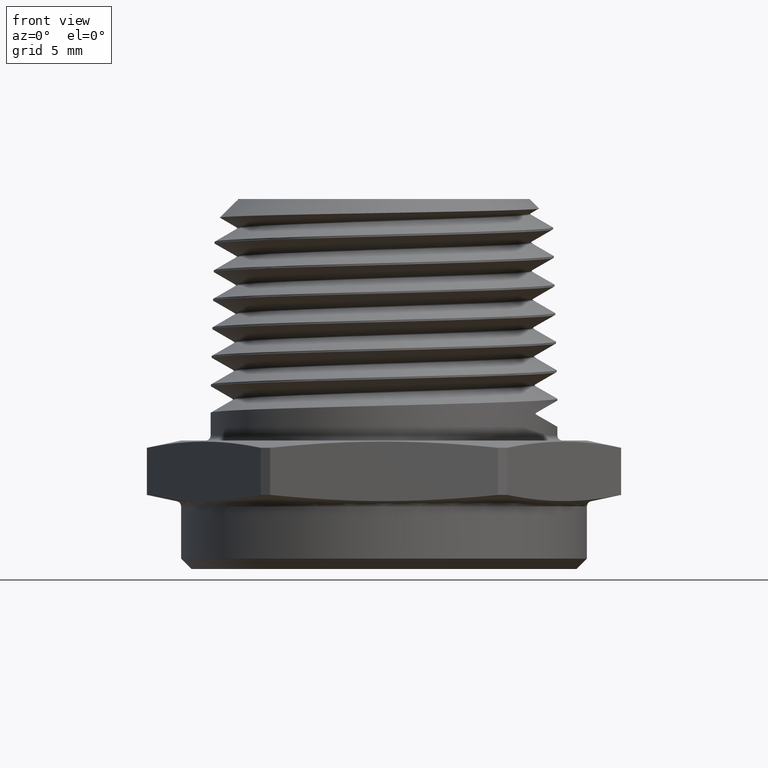
[diagram: clean part render]
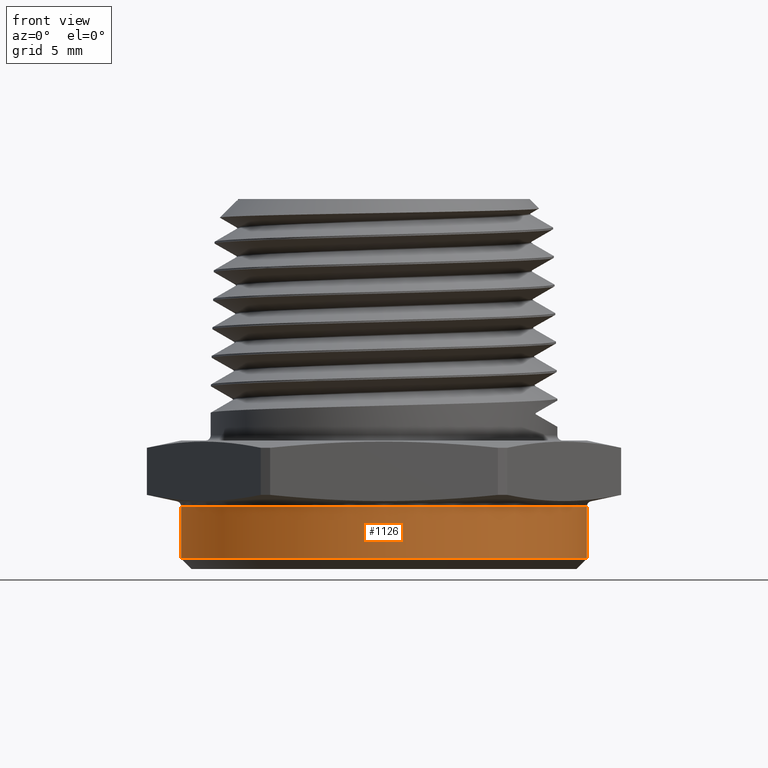
[diagram: same view with one face highlighted and labeled with its STEP entity id]
A machine part, front view. The second image highlights one B-rep face of the part: STEP entity #1126.
In plain terms, the highlighted cylindrical surface (partial cylindrical patch) has radius 10.033 mm, axis along (0, 0, 1).
Its self-contained STEP definition (entity closure, byte-faithful):
#94 = FACE_OUTER_BOUND ( 'NONE', #1687, .T. ) ;
#99 = CYLINDRICAL_SURFACE ( 'NONE', #2817, 0.3950000000000000200 ) ;
#355 = DIRECTION ( 'NONE',  ( -0.0000000000000000000, -0.0000000000000000000, 1.000000000000000000 ) ) ;
#374 = CARTESIAN_POINT ( 'NONE',  ( 0.0000000000000000000, 0.0000000000000000000, -0.008097840331950215800 ) ) ;
#375 = DIRECTION ( 'NONE',  ( -6.123233995736756200E-017, -0.0000000000000000000, -1.000000000000000000 ) ) ;
#376 = DIRECTION ( 'NONE',  ( -1.000000000000000000, 0.0000000000000000000, 6.213657422298067100E-017 ) ) ;
#451 = AXIS2_PLACEMENT_3D ( 'NONE', #5073, #5074, #5075 ) ;
#465 = AXIS2_PLACEMENT_3D ( 'NONE', #374, #375, #376 ) ;
#1126 = ADVANCED_FACE ( 'NONE', ( #94 ), #99, .T. ) ;
#1515 = LINE ( 'NONE', #2206, #1518 ) ;
#1518 = VECTOR ( 'NONE', #2201, 39.37007874015748100 ) ;
#1613 = CIRCLE ( 'NONE', #451, 0.3950000000000000200 ) ;
#1629 = LINE ( 'NONE', #5343, #1634 ) ;
#1634 = VECTOR ( 'NONE', #355, 39.37007874015748100 ) ;
#1639 = CIRCLE ( 'NONE', #465, 0.3950000000000000200 ) ;
#1687 = EDGE_LOOP ( 'NONE', ( #3448, #3447, #3449, #3443 ) ) ;
#2201 = DIRECTION ( 'NONE',  ( -0.0000000000000000000, -0.0000000000000000000, 1.000000000000000000 ) ) ;
#2206 = CARTESIAN_POINT ( 'NONE',  ( 0.3950000000000000200, 0.0000000000000000000, -0.1300000000000000000 ) ) ;
#2331 = EDGE_CURVE ( 'NONE', #3401, #3398, #1515, .T. ) ;
#2817 = AXIS2_PLACEMENT_3D ( 'NONE', #3166, #3162, #3163 ) ;
#3162 = DIRECTION ( 'NONE',  ( -0.0000000000000000000, -0.0000000000000000000, 1.000000000000000000 ) ) ;
#3163 = DIRECTION ( 'NONE',  ( 1.000000000000000000, 0.0000000000000000000, 0.0000000000000000000 ) ) ;
#3166 = CARTESIAN_POINT ( 'NONE',  ( 0.0000000000000000000, 0.0000000000000000000, -0.1300000000000000000 ) ) ;
#3395 = VERTEX_POINT ( 'NONE', #3519 ) ;
#3398 = VERTEX_POINT ( 'NONE', #3522 ) ;
#3400 = VERTEX_POINT ( 'NONE', #3524 ) ;
#3401 = VERTEX_POINT ( 'NONE', #3525 ) ;
#3443 = ORIENTED_EDGE ( 'NONE', *, *, #5568, .T. ) ;
#3447 = ORIENTED_EDGE ( 'NONE', *, *, #5546, .T. ) ;
#3448 = ORIENTED_EDGE ( 'NONE', *, *, #5561, .F. ) ;
#3449 = ORIENTED_EDGE ( 'NONE', *, *, #2331, .T. ) ;
#3519 = CARTESIAN_POINT ( 'NONE',  ( -0.3950000000000000200, 4.837354856632044300E-017, -0.008097840331950191500 ) ) ;
#3522 = CARTESIAN_POINT ( 'NONE',  ( 0.3950000000000000200, 0.0000000000000000000, -0.008097840331950240100 ) ) ;
#3524 = CARTESIAN_POINT ( 'NONE',  ( -0.3950000000000000200, 4.837354856632044300E-017, -0.1100000000000008200 ) ) ;
#3525 = CARTESIAN_POINT ( 'NONE',  ( 0.3950000000000000200, 0.0000000000000000000, -0.1100000000000008200 ) ) ;
#5073 = CARTESIAN_POINT ( 'NONE',  ( 0.0000000000000000000, 0.0000000000000000000, -0.1100000000000008200 ) ) ;
#5074 = DIRECTION ( 'NONE',  ( 0.0000000000000000000, 0.0000000000000000000, 1.000000000000000000 ) ) ;
#5075 = DIRECTION ( 'NONE',  ( -1.000000000000000000, 0.0000000000000000000, 0.0000000000000000000 ) ) ;
#5343 = CARTESIAN_POINT ( 'NONE',  ( -0.3950000000000000200, 4.837354856632044300E-017, -0.1300000000000000000 ) ) ;
#5546 = EDGE_CURVE ( 'NONE', #3400, #3401, #1613, .T. ) ;
#5561 = EDGE_CURVE ( 'NONE', #3400, #3395, #1629, .T. ) ;
#5568 = EDGE_CURVE ( 'NONE', #3398, #3395, #1639, .T. ) ;